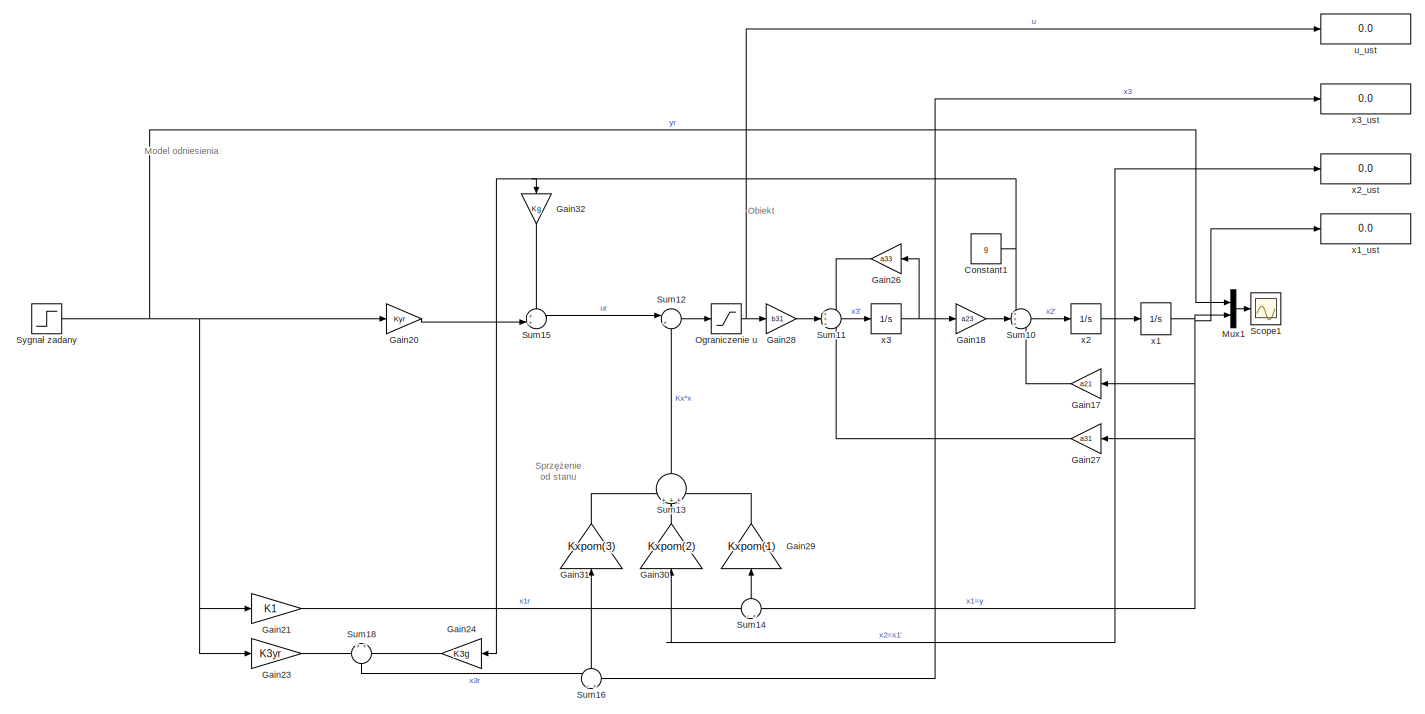
[diagram: root canvas - part 1/2, full width, top band]
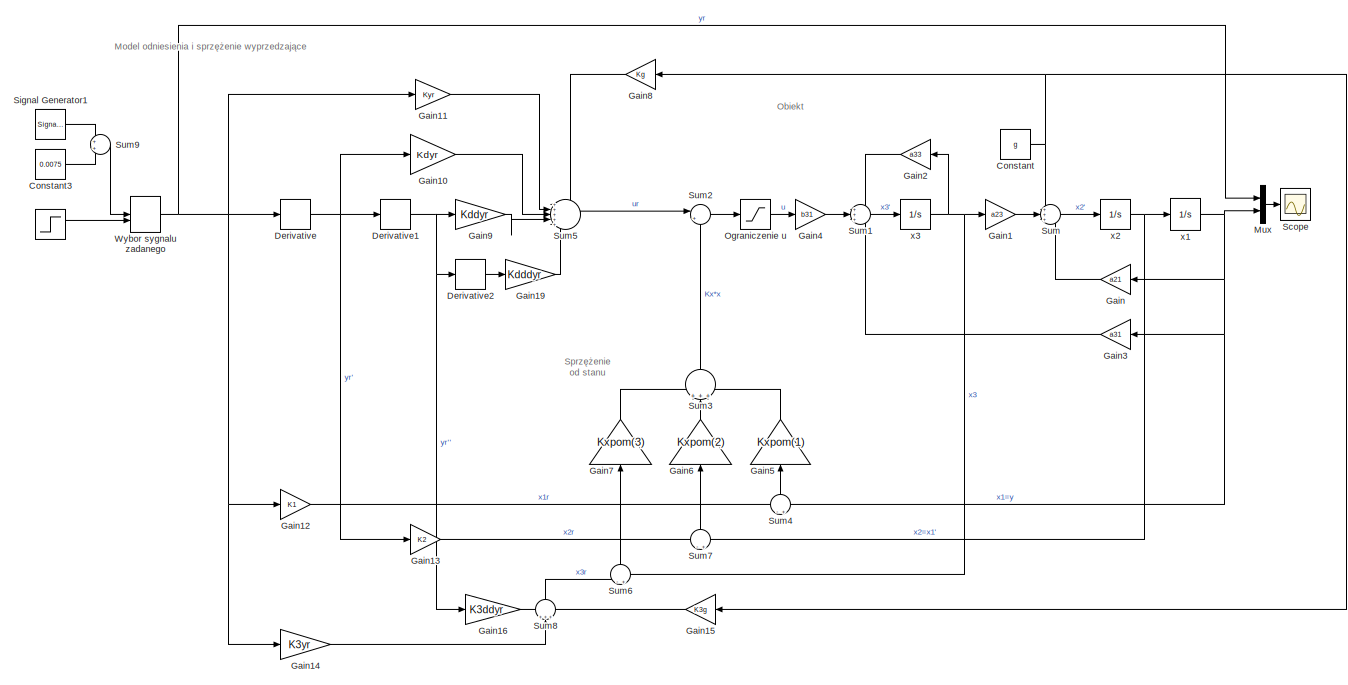
[diagram: root canvas - part 2/2, full width, bottom band]
MODEL slx_53ab4367c11e
KIND model
CONFIG AbsTol = auto
CONFIG EnableMultiTasking = off
CONFIG FixedStep = auto
CONFIG MaxStep = auto
CONFIG MinStep = auto
CONFIG RelTol = 1e-3
CONFIG SampleTimeConstraint = Unconstrained
CONFIG SolverName = VariableStepAuto
CONFIG StartTime = 0.0
CONFIG StopTime = 10.0
BLOCK [Step]   
  After = 0.008
  SampleTime = 0
  Time = 0
BLOCK [Step]  Sygnał zadany
  After = 0.008
  SampleTime = 0
  Time = 0
BLOCK [Integrator]  x1
  InitialCondition = xd
  LimitOutput = on
  LowerSaturationLimit = 0
  Ports = [1, 1]
  UpperSaturationLimit = xd
BLOCK [Integrator]  x2
  Ports = [1, 1]
BLOCK [Integrator]  x3
  Ports = [1, 1]
BLOCK [Constant] Constant
  Value = g
BLOCK [Constant] Constant1
  Value = g
BLOCK [Constant] Constant3
  Value = 0.0075
BLOCK [Derivative] Derivative
BLOCK [Derivative] Derivative1
BLOCK [Derivative] Derivative2
BLOCK [Gain] Gain
  Gain = a21
  NameLocation = top
BLOCK [Gain] Gain1
  Gain = a23
BLOCK [Gain] Gain10
  Gain = Kdyr
BLOCK [Gain] Gain11
  Gain = Kyr
BLOCK [Gain] Gain12
  Gain = K1
BLOCK [Gain] Gain13
  Gain = K2
BLOCK [Gain] Gain14
  Gain = K3yr
BLOCK [Gain] Gain15
  Gain = K3g
  NameLocation = top
BLOCK [Gain] Gain16
  Gain = K3ddyr
BLOCK [Gain] Gain17
  Gain = a21
  NameLocation = top
BLOCK [Gain] Gain18
  Gain = a23
BLOCK [Gain] Gain19
  Gain = Kdddyr
BLOCK [Gain] Gain2
  Gain = a33
  NameLocation = top
BLOCK [Gain] Gain20
  Gain = Kyr
BLOCK [Gain] Gain21
  Gain = K1
BLOCK [Gain] Gain23
  Gain = K3yr
BLOCK [Gain] Gain24
  Gain = K3g
  NameLocation = top
BLOCK [Gain] Gain26
  Gain = a33
  NameLocation = top
BLOCK [Gain] Gain27
  Gain = a31
  NameLocation = top
BLOCK [Gain] Gain28
  Gain = b31
BLOCK [Gain] Gain29
  Gain = Kxpom(1)
  NameLocation = right
BLOCK [Gain] Gain3
  Gain = a31
  NameLocation = top
BLOCK [Gain] Gain30
  Gain = Kxpom(2)
  NameLocation = right
BLOCK [Gain] Gain31
  Gain = Kxpom(3)
  NameLocation = right
BLOCK [Gain] Gain32
  Gain = Kg
  NameLocation = left
BLOCK [Gain] Gain4
  Gain = b31
BLOCK [Gain] Gain5
  Gain = Kxpom(1)
  NameLocation = right
BLOCK [Gain] Gain6
  Gain = Kxpom(2)
  NameLocation = right
BLOCK [Gain] Gain7
  Gain = Kxpom(3)
  NameLocation = right
BLOCK [Gain] Gain8
  Gain = Kg
  NameLocation = top
BLOCK [Gain] Gain9
  Gain = Kddyr
BLOCK [Mux] Mux
  DisplayOption = bar
  Inputs = 2
  Ports = [2, 1]
BLOCK [Mux] Mux1
  DisplayOption = bar
  Inputs = 2
  Ports = [2, 1]
BLOCK [Saturate] Ograniczenie u
  LowerLimit = 0
  UpperLimit = 1
  ZeroCross = off
BLOCK [Saturate] Ograniczenie u 
  LowerLimit = 0
  UpperLimit = 1
  ZeroCross = off
BLOCK [Scope] Scope
  Floating = off
  NumInputPorts = 1
  Ports = [1]
  ScopeSpecificationString = Simulink.scopes.TimeScopeBlockCfg('CurrentConfiguration', extmgr.ConfigurationSet(extmgr.Configuration('Core','General UI',true),extmgr.Configuration('Core','Source UI',true),extmgr.Configuration('Sources','WiredSimulink',true),extmgr.Configuration('Visuals','Time Domain',true,'SerializedDisplays',{struct('MinYLimReal','0.00116','MaxYLimReal','0.0146','YLabelReal','','MinYLimMag','0.00116','MaxYLi...<+1396ch>
BLOCK [Scope] Scope1
  Floating = off
  NumInputPorts = 1
  Ports = [1]
  ScopeSpecificationString = Simulink.scopes.TimeScopeBlockCfg('CurrentConfiguration', extmgr.ConfigurationSet(extmgr.Configuration('Core','General UI',true),extmgr.Configuration('Core','Source UI',true),extmgr.Configuration('Sources','WiredSimulink',true,'DataLoggingVariableName','ScopeData1'),extmgr.Configuration('Visuals','Time Domain',true,'SerializedDisplays',{struct('MinYLimReal','0.00651','MaxYLimReal','0.01401','YLabe...<+1439ch>
BLOCK [SignalGenerator] Signal Generator1
  Amplitude = 0.005
  Frequency = 4
  Ports = [0, 1]
  Units = rad/sec
BLOCK [Sum] Sum
  Inputs = +++
  Ports = [3, 1]
BLOCK [Sum] Sum1
  Inputs = +++
  Ports = [3, 1]
BLOCK [Sum] Sum10
  Inputs = +++
  Ports = [3, 1]
BLOCK [Sum] Sum11
  Inputs = +++
  Ports = [3, 1]
BLOCK [Sum] Sum12
  Inputs = |+-
  Ports = [2, 1]
BLOCK [Sum] Sum13
  Inputs = +++
  NameLocation = right
  Ports = [3, 1]
BLOCK [Sum] Sum14
  Inputs = -+
  NameLocation = right
  Ports = [2, 1]
BLOCK [Sum] Sum15
  Inputs = ++|
  Ports = [2, 1]
BLOCK [Sum] Sum16
  Inputs = -+
  NameLocation = right
  Ports = [2, 1]
BLOCK [Sum] Sum18
  NameLocation = left
  Ports = [2, 1]
BLOCK [Sum] Sum2
  Inputs = |+-
  Ports = [2, 1]
BLOCK [Sum] Sum3
  Inputs = +++
  NameLocation = right
  Ports = [3, 1]
BLOCK [Sum] Sum4
  Inputs = -+
  NameLocation = right
  Ports = [2, 1]
BLOCK [Sum] Sum5
  Inputs = +++++
  Ports = [5, 1]
BLOCK [Sum] Sum6
  Inputs = -+
  NameLocation = right
  Ports = [2, 1]
BLOCK [Sum] Sum7
  Inputs = -+
  NameLocation = right
  Ports = [2, 1]
BLOCK [Sum] Sum8
  Inputs = +++
  NameLocation = right
  Ports = [3, 1]
BLOCK [Sum] Sum9
  Ports = [2, 1]
BLOCK [ManualSwitch] Wybor sygnalu zadanego
BLOCK [Display] u_ust
  Decimation = 1
  Ports = [1]
BLOCK [Integrator] x1
  InitialCondition = xd
  LimitOutput = on
  LowerSaturationLimit = 0
  Ports = [1, 1]
  UpperSaturationLimit = xd
BLOCK [Display] x1_ust
  Decimation = 1
  Ports = [1]
BLOCK [Integrator] x2
  Ports = [1, 1]
BLOCK [Display] x2_ust
  Decimation = 1
  Ports = [1]
BLOCK [Integrator] x3
  Ports = [1, 1]
BLOCK [Display] x3_ust
  Decimation = 1
  Ports = [1]
ANNOTATION (root): Model odniesienia
ANNOTATION (root): Model odniesienia i sprzężenie wyprzedzające
ANNOTATION (root): Obiekt
ANNOTATION (root): Sprzężenie od stanu
LINE   :1 -> Wybor sygnalu zadanego:2
NET  Sygnał zadany:1 -> Gain20:1, Gain21:1, Gain23:1, Mux1:1
NET  x1:1 -> Gain17:1, Gain27:1, Mux1:2, Sum14:2, x1_ust:1
NET  x2:1 ->  x1:1, Gain30:1, x2_ust:1
NET  x3:1 -> Gain18:1, Gain26:1, Sum16:2, x3_ust:1
NET Constant1:1 -> Gain24:1, Gain32:1, Sum10:1
LINE Constant3:1 -> Sum9:2
NET Constant:1 -> Gain15:1, Gain8:1, Sum:1
NET Derivative1:1 -> Derivative2:1, Gain16:1, Gain9:1
LINE Derivative2:1 -> Gain19:1
NET Derivative:1 -> Derivative1:1, Gain10:1, Gain13:1
LINE Gain10:1 -> Sum5:3
LINE Gain11:1 -> Sum5:2
LINE Gain12:1 -> Sum4:1
LINE Gain13:1 -> Sum7:1
LINE Gain14:1 -> Sum8:2
LINE Gain15:1 -> Sum8:3
LINE Gain16:1 -> Sum8:1
LINE Gain17:1 -> Sum10:3
LINE Gain18:1 -> Sum10:2
LINE Gain19:1 -> Sum5:5
LINE Gain1:1 -> Sum:2
LINE Gain20:1 -> Sum15:2
LINE Gain21:1 -> Sum14:1
LINE Gain23:1 -> Sum18:1
LINE Gain24:1 -> Sum18:2
LINE Gain26:1 -> Sum11:1
LINE Gain27:1 -> Sum11:3
LINE Gain28:1 -> Sum11:2
LINE Gain29:1 -> Sum13:3
LINE Gain2:1 -> Sum1:1
LINE Gain30:1 -> Sum13:2
LINE Gain31:1 -> Sum13:1
LINE Gain32:1 -> Sum15:1
LINE Gain3:1 -> Sum1:3
LINE Gain4:1 -> Sum1:2
LINE Gain5:1 -> Sum3:3
LINE Gain6:1 -> Sum3:2
LINE Gain7:1 -> Sum3:1
LINE Gain8:1 -> Sum5:1
LINE Gain9:1 -> Sum5:4
LINE Gain:1 -> Sum:3
LINE Mux1:1 -> Scope1:1
LINE Mux:1 -> Scope:1
NET Ograniczenie u :1 -> Gain28:1, u_ust:1
LINE Ograniczenie u:1 -> Gain4:1
LINE Signal Generator1:1 -> Sum9:1
LINE Sum10:1 ->  x2:1
LINE Sum11:1 ->  x3:1
LINE Sum12:1 -> Ograniczenie u :1
LINE Sum13:1 -> Sum12:2
LINE Sum14:1 -> Gain29:1
LINE Sum15:1 -> Sum12:1
LINE Sum16:1 -> Gain31:1
LINE Sum18:1 -> Sum16:1
LINE Sum1:1 -> x3:1
LINE Sum2:1 -> Ograniczenie u:1
LINE Sum3:1 -> Sum2:2
LINE Sum4:1 -> Gain5:1
LINE Sum5:1 -> Sum2:1
LINE Sum6:1 -> Gain7:1
LINE Sum7:1 -> Gain6:1
LINE Sum8:1 -> Sum6:1
LINE Sum9:1 -> Wybor sygnalu zadanego:1
LINE Sum:1 -> x2:1
NET Wybor sygnalu zadanego:1 -> Derivative:1, Gain11:1, Gain12:1, Gain14:1, Mux:1
NET x1:1 -> Gain3:1, Gain:1, Mux:2, Sum4:2
NET x2:1 -> Sum7:2, x1:1
NET x3:1 -> Gain1:1, Gain2:1, Sum6:2
note: NET lines group one-source signal fan-out (src -> all destinations, sorted); 1:1 wires keep LINE
